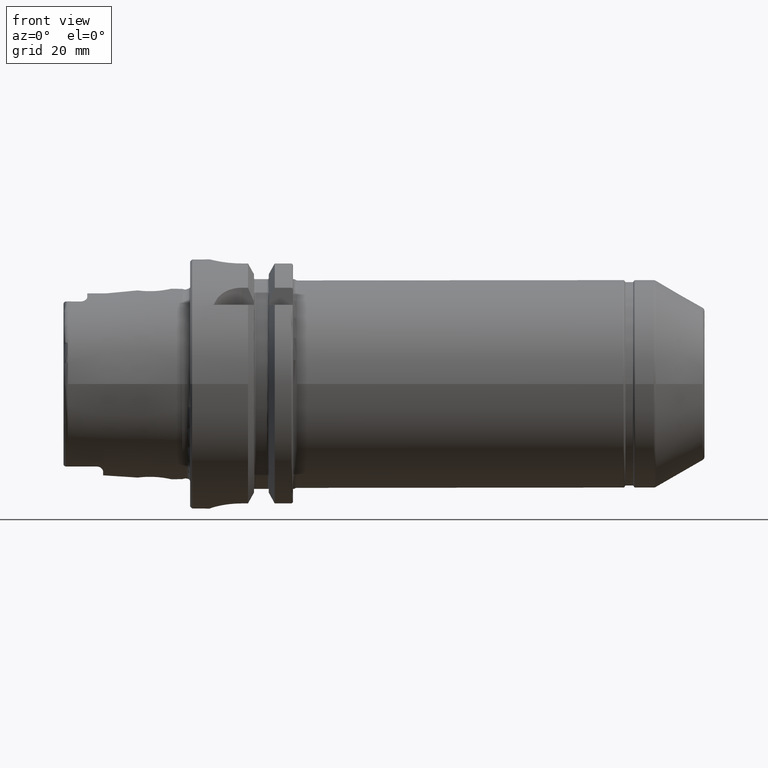
[diagram: clean part render]
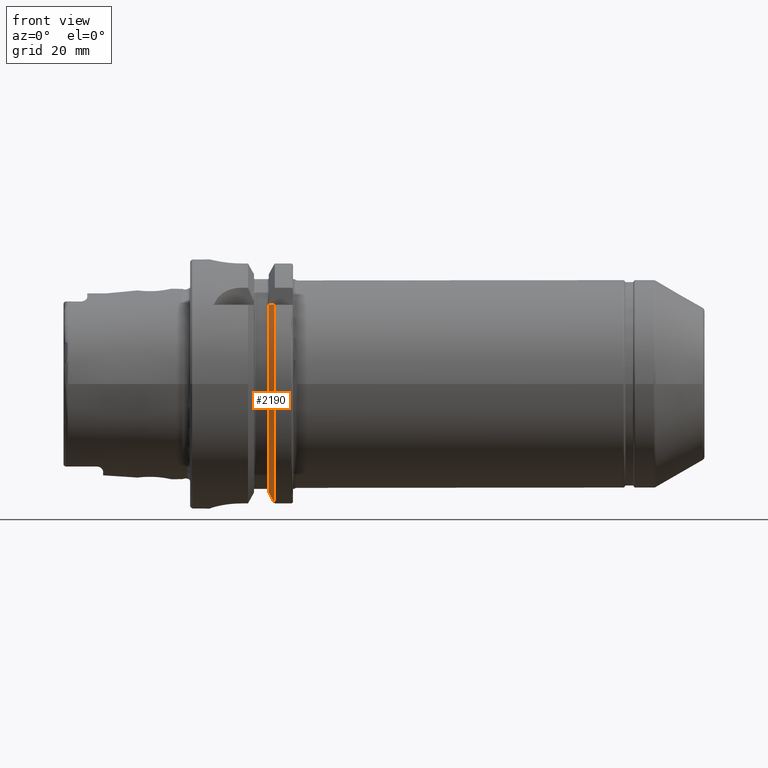
[diagram: same view with one face highlighted and labeled with its STEP entity id]
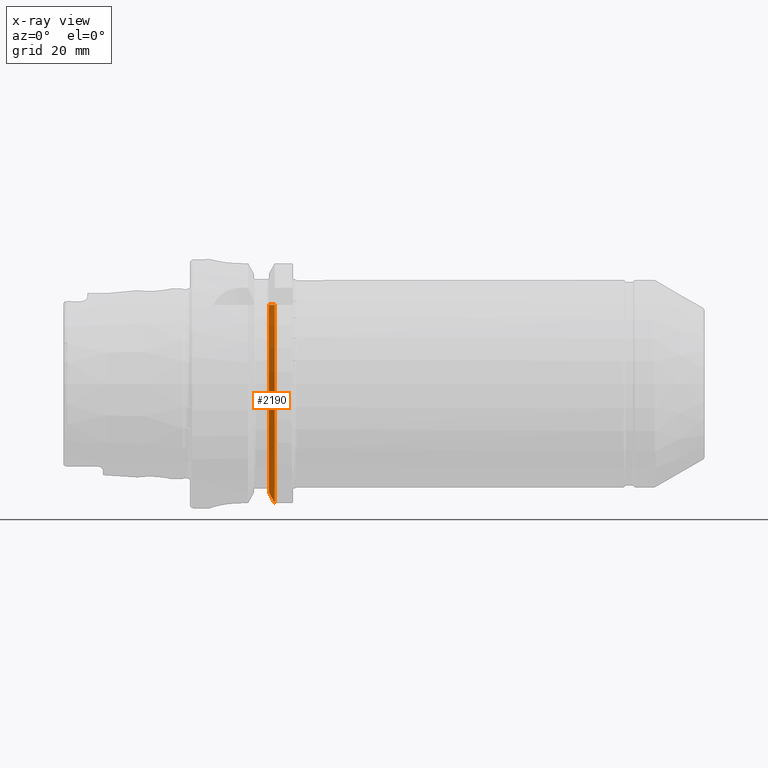
[diagram: x-ray of the same camera — body ghosted, the highlighted face saturated]
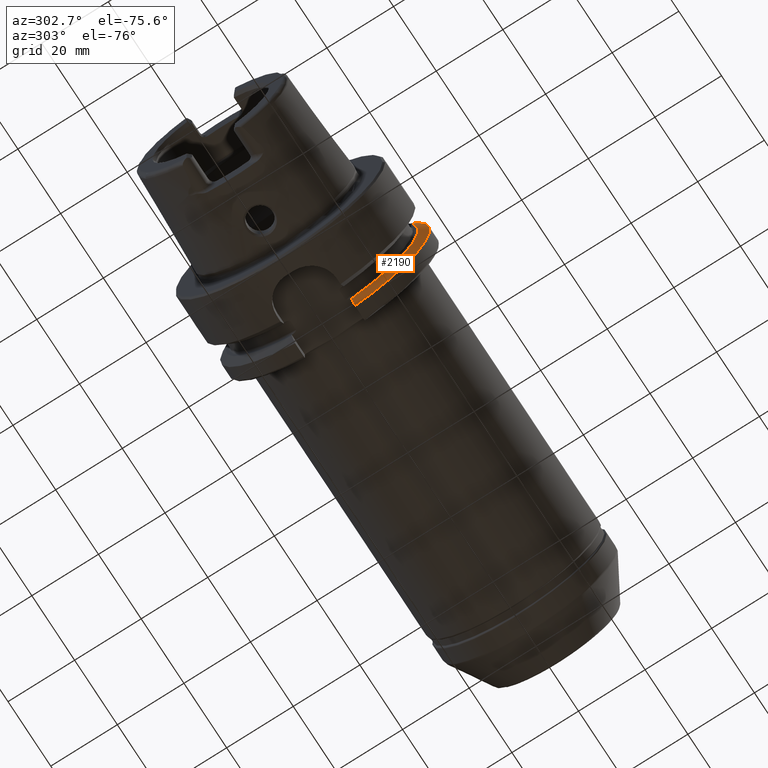
[diagram: same view with one face highlighted and labeled with its STEP entity id]
A machine part, front view. The second image highlights one B-rep face of the part: STEP entity #2190.
The next image is the same camera in x-ray: the body ghosted, the highlighted face saturated — about 0% of this face is hidden behind the body in this view.
A second angle (auxiliary view) of the same face is appended — the face is thin or edge-on in the first view.
In plain terms, the highlighted conical surface has half-angle 60 deg.
Its self-contained STEP definition (entity closure, byte-faithful):
#17=(
BOUNDED_CURVE()
B_SPLINE_CURVE(2,(#4107,#4108,#4109),.UNSPECIFIED.,.F.,.F.)
B_SPLINE_CURVE_WITH_KNOTS((3,3),(0.,0.378858277140999),.UNSPECIFIED.)
CURVE()
GEOMETRIC_REPRESENTATION_ITEM()
RATIONAL_B_SPLINE_CURVE((1.,1.00166199353895,1.))
REPRESENTATION_ITEM('')
);
#25=(
BOUNDED_CURVE()
B_SPLINE_CURVE(2,(#4324,#4325,#4326),.UNSPECIFIED.,.F.,.F.)
B_SPLINE_CURVE_WITH_KNOTS((3,3),(0.,0.311314369989023),.UNSPECIFIED.)
CURVE()
GEOMETRIC_REPRESENTATION_ITEM()
RATIONAL_B_SPLINE_CURVE((1.,1.00102053193229,1.))
REPRESENTATION_ITEM('')
);
#163=CONICAL_SURFACE('',#2441,30.1987976320958,1.0471975511966);
#268=FACE_OUTER_BOUND('',#400,.T.);
#400=EDGE_LOOP('',(#1807,#1808,#1809,#1810));
#766=CIRCLE('',#2409,28.8975952641916);
#779=CIRCLE('',#2440,31.5);
#946=VERTEX_POINT('',#4103);
#948=VERTEX_POINT('',#4106);
#970=VERTEX_POINT('',#4203);
#993=VERTEX_POINT('',#4322);
#1212=EDGE_CURVE('',#948,#946,#17,.T.);
#1242=EDGE_CURVE('',#946,#970,#766,.T.);
#1272=EDGE_CURVE('',#970,#993,#25,.T.);
#1301=EDGE_CURVE('',#948,#993,#779,.T.);
#1807=ORIENTED_EDGE('',*,*,#1212,.T.);
#1808=ORIENTED_EDGE('',*,*,#1242,.T.);
#1809=ORIENTED_EDGE('',*,*,#1272,.T.);
#1810=ORIENTED_EDGE('',*,*,#1301,.F.);
#2190=ADVANCED_FACE('',(#268),#163,.T.);
#2409=AXIS2_PLACEMENT_3D('',#4205,#2888,#2889);
#2440=AXIS2_PLACEMENT_3D('',#4456,#2974,#2975);
#2441=AXIS2_PLACEMENT_3D('',#4457,#2976,#2977);
#2888=DIRECTION('center_axis',(1.,0.,0.));
#2889=DIRECTION('ref_axis',(0.,0.,-1.));
#2974=DIRECTION('center_axis',(1.,0.,0.));
#2975=DIRECTION('ref_axis',(0.,0.,-1.));
#2976=DIRECTION('center_axis',(1.,0.,0.));
#2977=DIRECTION('ref_axis',(0.,-0.966819045705046,-0.255462194584608));
#4103=CARTESIAN_POINT('',(19.875,-20.8583559288126,20.));
#4106=CARTESIAN_POINT('',(21.3774990747593,-24.3361870472759,20.));
#4107=CARTESIAN_POINT('Ctrl Pts',(21.3774990747593,-24.3361870472759,20.));
#4108=CARTESIAN_POINT('Ctrl Pts',(20.5684390397667,-22.5223452916164,20.));
#4109=CARTESIAN_POINT('Ctrl Pts',(19.875,-20.8583559288126,20.));
#4203=CARTESIAN_POINT('',(19.875,-9.,-27.4603534582684));
#4205=CARTESIAN_POINT('Origin',(19.875,0.,0.));
#4322=CARTESIAN_POINT('',(21.3774990747593,-9.,-30.1869176962472));
#4324=CARTESIAN_POINT('Ctrl Pts',(19.875,-9.,-27.4603534582684));
#4325=CARTESIAN_POINT('Ctrl Pts',(20.5907174110262,-9.,-28.7648946319019));
#4326=CARTESIAN_POINT('Ctrl Pts',(21.3774990747593,-9.,-30.1869176962472));
#4456=CARTESIAN_POINT('Origin',(21.3774990747593,0.,0.));
#4457=CARTESIAN_POINT('Origin',(20.6262495373797,0.,0.));